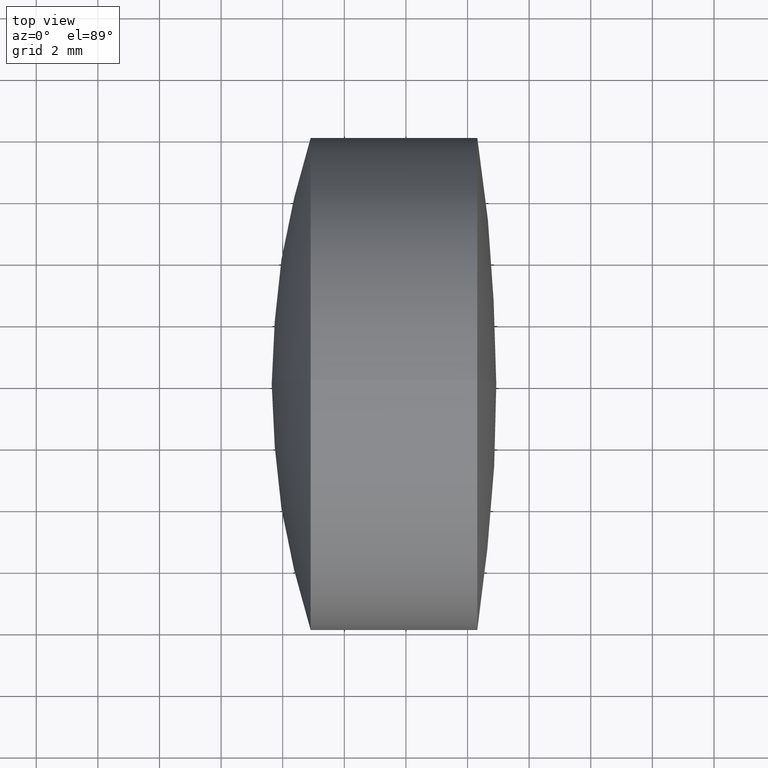
[diagram: clean part render]
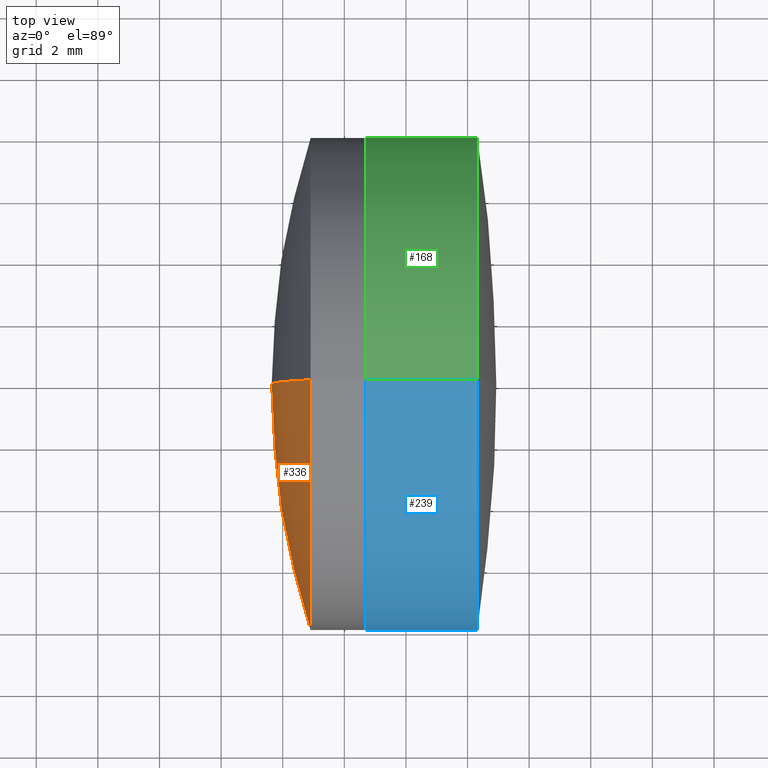
[diagram: same view with three faces highlighted in distinct colors, each labeled with its STEP entity id]
A machine part, top view with three faces highlighted in distinct colors.
Their STEP definitions:

[orange] entity #336 — the highlighted spherical surface has radius 25.956 mm.
#12 = DIRECTION ( 'NONE',  ( 0.0000000000000000000, 0.0000000000000000000, 1.000000000000000000 ) ) ;
#22 = SPHERICAL_SURFACE ( 'NONE', #204, 25.95600000000000700 ) ;
#24 = EDGE_CURVE ( 'NONE', #224, #88, #103, .T. ) ;
#56 = CIRCLE ( 'NONE', #131, 25.95600000000000700 ) ;
#58 = DIRECTION ( 'NONE',  ( -0.0000000000000000000, 1.000000000000000000, 1.224646799147353200E-016 ) ) ;
#69 = CARTESIAN_POINT ( 'NONE',  ( 20.90665728463440900, 0.0000000000000000000, 0.0000000000000000000 ) ) ;
#74 = DIRECTION ( 'NONE',  ( -1.000000000000000000, -0.0000000000000000000, -0.0000000000000000000 ) ) ;
#77 = CARTESIAN_POINT ( 'NONE',  ( 45.59904347957313300, 0.0000000000000000000, -1.740547722561040700E-016 ) ) ;
#85 = FACE_OUTER_BOUND ( 'NONE', #156, .T. ) ;
#88 = VERTEX_POINT ( 'NONE', #128 ) ;
#90 = EDGE_CURVE ( 'NONE', #201, #88, #56, .T. ) ;
#92 = CARTESIAN_POINT ( 'NONE',  ( 20.90665728463440900, 0.0000000000000000000, 7.999999999999996400 ) ) ;
#102 = AXIS2_PLACEMENT_3D ( 'NONE', #77, #58, #118 ) ;
#103 = CIRCLE ( 'NONE', #102, 25.95600000000000700 ) ;
#107 = ORIENTED_EDGE ( 'NONE', *, *, #90, .T. ) ;
#118 = DIRECTION ( 'NONE',  ( 0.0000000000000000000, -1.224646799147353200E-016, 1.000000000000000000 ) ) ;
#128 = CARTESIAN_POINT ( 'NONE',  ( 19.64304347957312300, 0.0000000000000000000, 1.415291843677331300E-015 ) ) ;
#131 = AXIS2_PLACEMENT_3D ( 'NONE', #135, #295, #214 ) ;
#135 = CARTESIAN_POINT ( 'NONE',  ( 45.59904347957313300, 0.0000000000000000000, -1.740547722561040700E-016 ) ) ;
#156 = EDGE_LOOP ( 'NONE', ( #285, #280, #107 ) ) ;
#169 = DIRECTION ( 'NONE',  ( 0.0000000000000000000, 1.000000000000000000, 0.0000000000000000000 ) ) ;
#189 = DIRECTION ( 'NONE',  ( 0.0000000000000000000, 0.0000000000000000000, 1.000000000000000000 ) ) ;
#201 = VERTEX_POINT ( 'NONE', #92 ) ;
#204 = AXIS2_PLACEMENT_3D ( 'NONE', #309, #169, #189 ) ;
#214 = DIRECTION ( 'NONE',  ( 0.0000000000000000000, 0.0000000000000000000, -1.000000000000000000 ) ) ;
#224 = VERTEX_POINT ( 'NONE', #275 ) ;
#225 = AXIS2_PLACEMENT_3D ( 'NONE', #69, #74, #12 ) ;
#275 = CARTESIAN_POINT ( 'NONE',  ( 20.90665728463440900, 9.797174393178823700E-016, -7.999999999999996400 ) ) ;
#280 = ORIENTED_EDGE ( 'NONE', *, *, #299, .T. ) ;
#285 = ORIENTED_EDGE ( 'NONE', *, *, #24, .F. ) ;
#295 = DIRECTION ( 'NONE',  ( 0.0000000000000000000, -1.000000000000000000, 0.0000000000000000000 ) ) ;
#296 = CIRCLE ( 'NONE', #225, 8.000000000000000000 ) ;
#299 = EDGE_CURVE ( 'NONE', #224, #201, #296, .T. ) ;
#309 = CARTESIAN_POINT ( 'NONE',  ( 45.59904347957313300, 0.0000000000000000000, -1.740547722561040700E-016 ) ) ;
#336 = ADVANCED_FACE ( 'NONE', ( #85 ), #22, .T. ) ;

[blue] entity #239 — the highlighted cylindrical surface (partial cylindrical patch) has radius 8 mm, axis along (-1, -0, -0).
#4 = CARTESIAN_POINT ( 'NONE',  ( 26.31686387635513600, 0.0000000000000000000, 0.0000000000000000000 ) ) ;
#15 = DIRECTION ( 'NONE',  ( -1.000000000000000000, -0.0000000000000000000, -0.0000000000000000000 ) ) ;
#17 = AXIS2_PLACEMENT_3D ( 'NONE', #4, #15, #335 ) ;
#18 = CARTESIAN_POINT ( 'NONE',  ( 22.70377877512568400, 9.797174393178823700E-016, -7.999999999999996400 ) ) ;
#32 = VERTEX_POINT ( 'NONE', #292 ) ;
#40 = DIRECTION ( 'NONE',  ( 0.0000000000000000000, 0.0000000000000000000, 1.000000000000000000 ) ) ;
#44 = CARTESIAN_POINT ( 'NONE',  ( -0.5519199926577972300, 0.0000000000000000000, 7.999999999999996400 ) ) ;
#64 = DIRECTION ( 'NONE',  ( -1.000000000000000000, -0.0000000000000000000, -0.0000000000000000000 ) ) ;
#65 = DIRECTION ( 'NONE',  ( -1.000000000000000000, -0.0000000000000000000, -0.0000000000000000000 ) ) ;
#71 = CIRCLE ( 'NONE', #220, 7.999999999999998200 ) ;
#98 = VECTOR ( 'NONE', #328, 1000.000000000000000 ) ;
#104 = LINE ( 'NONE', #310, #208 ) ;
#127 = LINE ( 'NONE', #44, #98 ) ;
#159 = VERTEX_POINT ( 'NONE', #18 ) ;
#160 = ORIENTED_EDGE ( 'NONE', *, *, #343, .F. ) ;
#174 = CARTESIAN_POINT ( 'NONE',  ( 22.70377877512568400, 0.0000000000000000000, 7.999999999999996400 ) ) ;
#182 = CYLINDRICAL_SURFACE ( 'NONE', #320, 7.999999999999996400 ) ;
#184 = VERTEX_POINT ( 'NONE', #174 ) ;
#190 = ORIENTED_EDGE ( 'NONE', *, *, #339, .F. ) ;
#194 = EDGE_CURVE ( 'NONE', #319, #32, #347, .T. ) ;
#196 = DIRECTION ( 'NONE',  ( 0.0000000000000000000, 0.0000000000000000000, 1.000000000000000000 ) ) ;
#208 = VECTOR ( 'NONE', #221, 1000.000000000000000 ) ;
#217 = ORIENTED_EDGE ( 'NONE', *, *, #194, .T. ) ;
#220 = AXIS2_PLACEMENT_3D ( 'NONE', #297, #64, #40 ) ;
#221 = DIRECTION ( 'NONE',  ( -1.000000000000000000, -0.0000000000000000000, -0.0000000000000000000 ) ) ;
#228 = EDGE_LOOP ( 'NONE', ( #160, #217, #262, #190 ) ) ;
#239 = ADVANCED_FACE ( 'NONE', ( #315 ), #182, .T. ) ;
#262 = ORIENTED_EDGE ( 'NONE', *, *, #342, .T. ) ;
#266 = CARTESIAN_POINT ( 'NONE',  ( -0.5519199926577972300, 0.0000000000000000000, 0.0000000000000000000 ) ) ;
#292 = CARTESIAN_POINT ( 'NONE',  ( 26.31686387635513600, 0.0000000000000000000, 7.999999999999992900 ) ) ;
#297 = CARTESIAN_POINT ( 'NONE',  ( 22.70377877512568400, 0.0000000000000000000, 0.0000000000000000000 ) ) ;
#310 = CARTESIAN_POINT ( 'NONE',  ( -0.5519199926577972300, 9.797174393178821700E-016, -7.999999999999996400 ) ) ;
#312 = CARTESIAN_POINT ( 'NONE',  ( 26.31686387635513600, 9.797174393178819700E-016, -7.999999999999992900 ) ) ;
#315 = FACE_OUTER_BOUND ( 'NONE', #228, .T. ) ;
#319 = VERTEX_POINT ( 'NONE', #312 ) ;
#320 = AXIS2_PLACEMENT_3D ( 'NONE', #266, #65, #196 ) ;
#328 = DIRECTION ( 'NONE',  ( -1.000000000000000000, -0.0000000000000000000, -0.0000000000000000000 ) ) ;
#335 = DIRECTION ( 'NONE',  ( 0.0000000000000000000, 0.0000000000000000000, 1.000000000000000000 ) ) ;
#339 = EDGE_CURVE ( 'NONE', #159, #184, #71, .T. ) ;
#342 = EDGE_CURVE ( 'NONE', #32, #184, #127, .T. ) ;
#343 = EDGE_CURVE ( 'NONE', #319, #159, #104, .T. ) ;
#347 = CIRCLE ( 'NONE', #17, 7.999999999999992900 ) ;

[green] entity #168 — the highlighted cylindrical surface (partial cylindrical patch) has radius 8 mm, axis along (-1, -0, -0).
#5 = ORIENTED_EDGE ( 'NONE', *, *, #343, .T. ) ;
#18 = CARTESIAN_POINT ( 'NONE',  ( 22.70377877512568400, 9.797174393178823700E-016, -7.999999999999996400 ) ) ;
#31 = DIRECTION ( 'NONE',  ( -1.000000000000000000, -0.0000000000000000000, -0.0000000000000000000 ) ) ;
#32 = VERTEX_POINT ( 'NONE', #292 ) ;
#34 = CARTESIAN_POINT ( 'NONE',  ( -0.5519199926577972300, 0.0000000000000000000, 0.0000000000000000000 ) ) ;
#44 = CARTESIAN_POINT ( 'NONE',  ( -0.5519199926577972300, 0.0000000000000000000, 7.999999999999996400 ) ) ;
#46 = AXIS2_PLACEMENT_3D ( 'NONE', #34, #31, #329 ) ;
#50 = CIRCLE ( 'NONE', #179, 7.999999999999992900 ) ;
#60 = CARTESIAN_POINT ( 'NONE',  ( 22.70377877512568400, 0.0000000000000000000, 0.0000000000000000000 ) ) ;
#96 = FACE_OUTER_BOUND ( 'NONE', #300, .T. ) ;
#98 = VECTOR ( 'NONE', #328, 1000.000000000000000 ) ;
#104 = LINE ( 'NONE', #310, #208 ) ;
#106 = DIRECTION ( 'NONE',  ( 0.0000000000000000000, 0.0000000000000000000, 1.000000000000000000 ) ) ;
#111 = DIRECTION ( 'NONE',  ( -1.000000000000000000, -0.0000000000000000000, -0.0000000000000000000 ) ) ;
#127 = LINE ( 'NONE', #44, #98 ) ;
#146 = CARTESIAN_POINT ( 'NONE',  ( 26.31686387635513600, 0.0000000000000000000, 0.0000000000000000000 ) ) ;
#152 = CYLINDRICAL_SURFACE ( 'NONE', #46, 7.999999999999996400 ) ;
#159 = VERTEX_POINT ( 'NONE', #18 ) ;
#165 = ORIENTED_EDGE ( 'NONE', *, *, #191, .T. ) ;
#168 = ADVANCED_FACE ( 'NONE', ( #96 ), #152, .T. ) ;
#174 = CARTESIAN_POINT ( 'NONE',  ( 22.70377877512568400, 0.0000000000000000000, 7.999999999999996400 ) ) ;
#179 = AXIS2_PLACEMENT_3D ( 'NONE', #146, #277, #268 ) ;
#184 = VERTEX_POINT ( 'NONE', #174 ) ;
#185 = EDGE_CURVE ( 'NONE', #184, #159, #271, .T. ) ;
#191 = EDGE_CURVE ( 'NONE', #32, #319, #50, .T. ) ;
#208 = VECTOR ( 'NONE', #221, 1000.000000000000000 ) ;
#221 = DIRECTION ( 'NONE',  ( -1.000000000000000000, -0.0000000000000000000, -0.0000000000000000000 ) ) ;
#229 = ORIENTED_EDGE ( 'NONE', *, *, #342, .F. ) ;
#235 = ORIENTED_EDGE ( 'NONE', *, *, #185, .F. ) ;
#268 = DIRECTION ( 'NONE',  ( 0.0000000000000000000, 0.0000000000000000000, 1.000000000000000000 ) ) ;
#271 = CIRCLE ( 'NONE', #327, 7.999999999999998200 ) ;
#277 = DIRECTION ( 'NONE',  ( -1.000000000000000000, -0.0000000000000000000, -0.0000000000000000000 ) ) ;
#292 = CARTESIAN_POINT ( 'NONE',  ( 26.31686387635513600, 0.0000000000000000000, 7.999999999999992900 ) ) ;
#300 = EDGE_LOOP ( 'NONE', ( #165, #5, #235, #229 ) ) ;
#310 = CARTESIAN_POINT ( 'NONE',  ( -0.5519199926577972300, 9.797174393178821700E-016, -7.999999999999996400 ) ) ;
#312 = CARTESIAN_POINT ( 'NONE',  ( 26.31686387635513600, 9.797174393178819700E-016, -7.999999999999992900 ) ) ;
#319 = VERTEX_POINT ( 'NONE', #312 ) ;
#327 = AXIS2_PLACEMENT_3D ( 'NONE', #60, #111, #106 ) ;
#328 = DIRECTION ( 'NONE',  ( -1.000000000000000000, -0.0000000000000000000, -0.0000000000000000000 ) ) ;
#329 = DIRECTION ( 'NONE',  ( 0.0000000000000000000, 0.0000000000000000000, 1.000000000000000000 ) ) ;
#342 = EDGE_CURVE ( 'NONE', #32, #184, #127, .T. ) ;
#343 = EDGE_CURVE ( 'NONE', #319, #159, #104, .T. ) ;